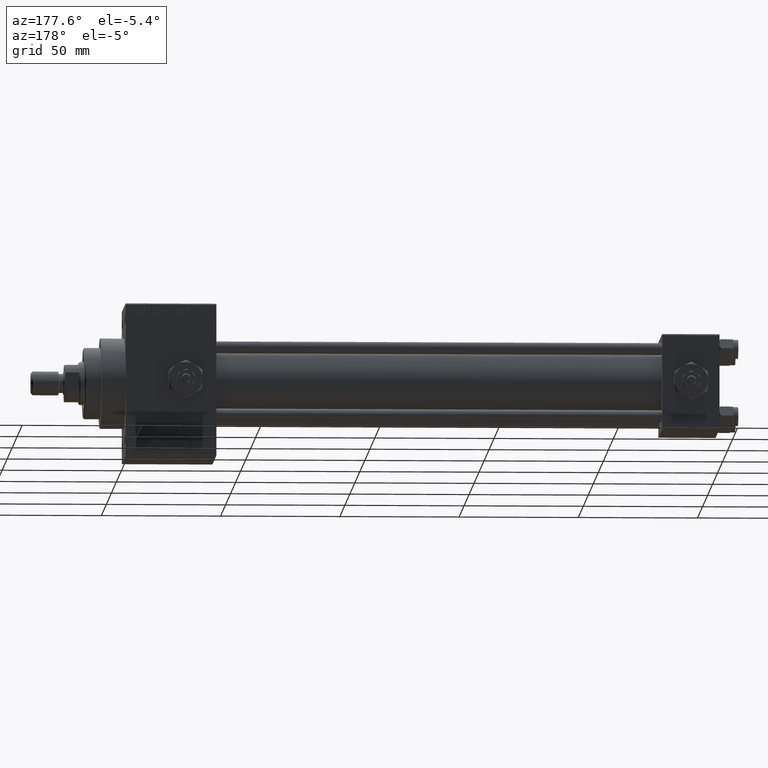
[diagram: clean part render]
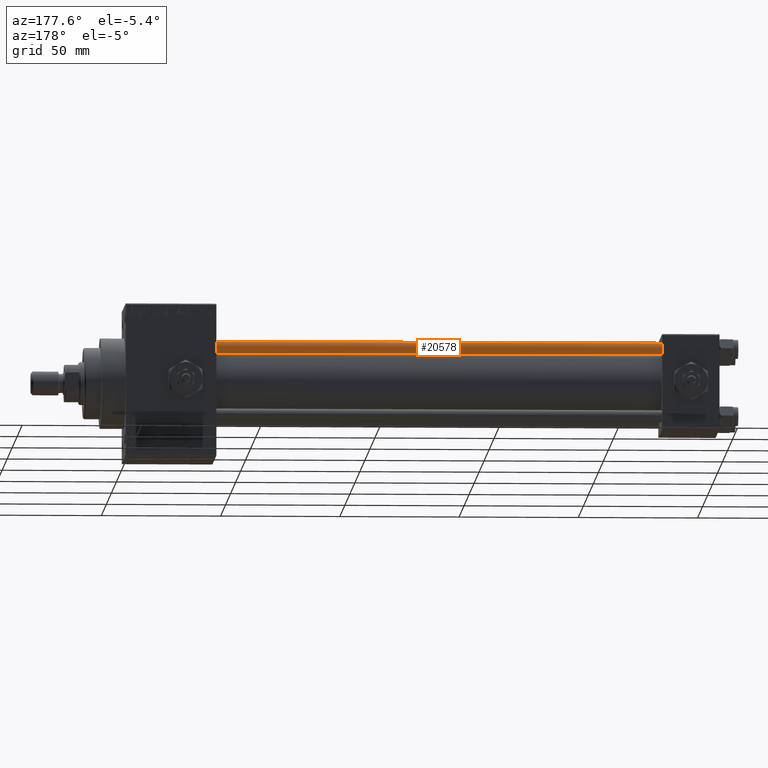
[diagram: same view with one face highlighted and labeled with its STEP entity id]
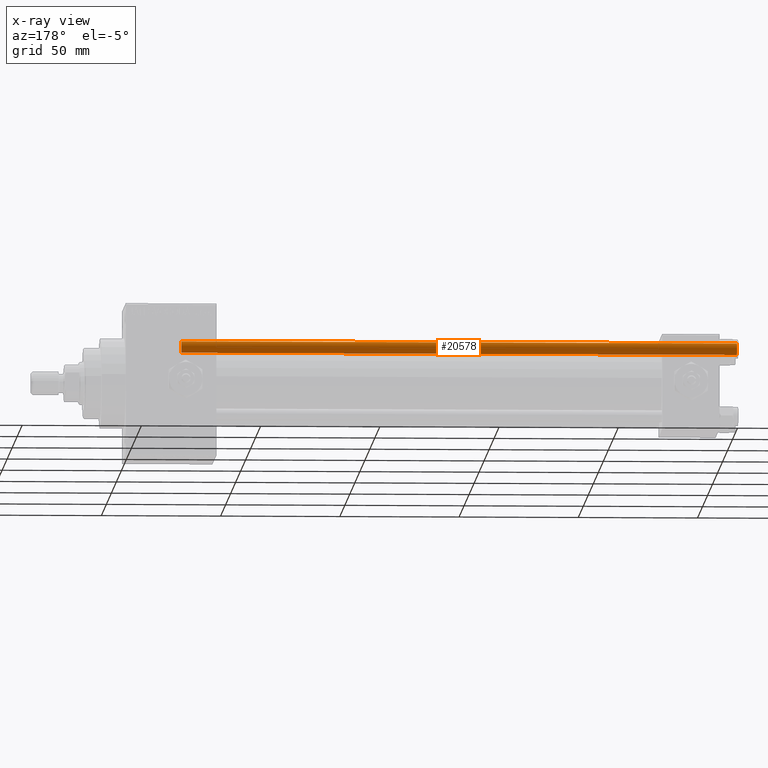
[diagram: x-ray of the same camera — body ghosted, the highlighted face saturated]
A machine part, auxiliary view. The second image highlights one B-rep face of the part: STEP entity #20578.
The next image is the same camera in x-ray: the body ghosted, the highlighted face saturated — about 0% of this face is hidden behind the body in this view.
In plain terms, the highlighted cylindrical surface (edge-blend (fillet) strip) has radius 2.5 mm, axis along (-1, -0, 0).
Its self-contained STEP definition (entity closure, byte-faithful):
#2485 = ORIENTED_EDGE ( 'NONE', *, *, #32477, .T. ) ;
#3265 = CARTESIAN_POINT ( 'NONE',  ( 0.000000000000000000, 0.000000000000000000, 0.5000000000000281997 ) ) ;
#3842 = EDGE_CURVE ( 'NONE', #11327, #44408, #9566, .T. ) ;
#4091 = ORIENTED_EDGE ( 'NONE', *, *, #16455, .T. ) ;
#6239 = CYLINDRICAL_SURFACE ( 'NONE', #27163, 2.500000000000000000 ) ;
#7156 = EDGE_LOOP ( 'NONE', ( #2485, #23014, #4091, #36094 ) ) ;
#9566 = LINE ( 'NONE', #35588, #28304 ) ;
#11327 = VERTEX_POINT ( 'NONE', #46578 ) ;
#12383 = CARTESIAN_POINT ( 'NONE',  ( -2.500000000000000000, 0.000000000000000000, 233.5000000000000284 ) ) ;
#12638 = VERTEX_POINT ( 'NONE', #49297 ) ;
#13212 = DIRECTION ( 'NONE',  ( 0.000000000000000000, 0.000000000000000000, -1.000000000000000000 ) ) ;
#14289 = CIRCLE ( 'NONE', #48644, 2.500000000000000000 ) ;
#14484 = DIRECTION ( 'NONE',  ( -1.000000000000000000, 0.000000000000000000, 0.000000000000000000 ) ) ;
#16455 = EDGE_CURVE ( 'NONE', #44408, #12638, #14289, .T. ) ;
#18941 = CARTESIAN_POINT ( 'NONE',  ( 2.500000000000000000, 3.061616997868383141E-16, 0.5000000000000281997 ) ) ;
#20578 = ADVANCED_FACE ( 'NONE', ( #22006 ), #6239, .T. ) ;
#21766 = DIRECTION ( 'NONE',  ( -0.000000000000000000, -0.000000000000000000, 1.000000000000000000 ) ) ;
#22006 = FACE_OUTER_BOUND ( 'NONE', #7156, .T. ) ;
#22504 = DIRECTION ( 'NONE',  ( -0.000000000000000000, -0.000000000000000000, -1.000000000000000000 ) ) ;
#23014 = ORIENTED_EDGE ( 'NONE', *, *, #3842, .T. ) ;
#23513 = VECTOR ( 'NONE', #41953, 1000.000000000000000 ) ;
#25494 = CARTESIAN_POINT ( 'NONE',  ( 0.000000000000000000, 0.000000000000000000, 234.0000000000000000 ) ) ;
#26713 = LINE ( 'NONE', #42443, #23513 ) ;
#27163 = AXIS2_PLACEMENT_3D ( 'NONE', #25494, #22504, #14484 ) ;
#28304 = VECTOR ( 'NONE', #39346, 1000.000000000000000 ) ;
#29501 = VERTEX_POINT ( 'NONE', #12383 ) ;
#31730 = CARTESIAN_POINT ( 'NONE',  ( 0.000000000000000000, 0.000000000000000000, 233.5000000000000284 ) ) ;
#32205 = AXIS2_PLACEMENT_3D ( 'NONE', #31730, #13212, #43462 ) ;
#32477 = EDGE_CURVE ( 'NONE', #29501, #11327, #43372, .T. ) ;
#35588 = CARTESIAN_POINT ( 'NONE',  ( 2.500000000000000000, 3.061616997868383141E-16, 234.0000000000000000 ) ) ;
#36094 = ORIENTED_EDGE ( 'NONE', *, *, #37972, .F. ) ;
#37972 = EDGE_CURVE ( 'NONE', #29501, #12638, #26713, .T. ) ;
#39346 = DIRECTION ( 'NONE',  ( -0.000000000000000000, -0.000000000000000000, -1.000000000000000000 ) ) ;
#41953 = DIRECTION ( 'NONE',  ( -0.000000000000000000, -0.000000000000000000, -1.000000000000000000 ) ) ;
#42443 = CARTESIAN_POINT ( 'NONE',  ( -2.500000000000000000, 0.000000000000000000, 234.0000000000000000 ) ) ;
#43372 = CIRCLE ( 'NONE', #32205, 2.500000000000000000 ) ;
#43462 = DIRECTION ( 'NONE',  ( 1.000000000000000000, 0.000000000000000000, 0.000000000000000000 ) ) ;
#44408 = VERTEX_POINT ( 'NONE', #18941 ) ;
#45262 = DIRECTION ( 'NONE',  ( 1.000000000000000000, 0.000000000000000000, 0.000000000000000000 ) ) ;
#46578 = CARTESIAN_POINT ( 'NONE',  ( 2.500000000000000000, 3.061616997868383141E-16, 233.5000000000000284 ) ) ;
#48644 = AXIS2_PLACEMENT_3D ( 'NONE', #3265, #21766, #45262 ) ;
#49297 = CARTESIAN_POINT ( 'NONE',  ( -2.500000000000000000, 0.000000000000000000, 0.5000000000000281997 ) ) ;